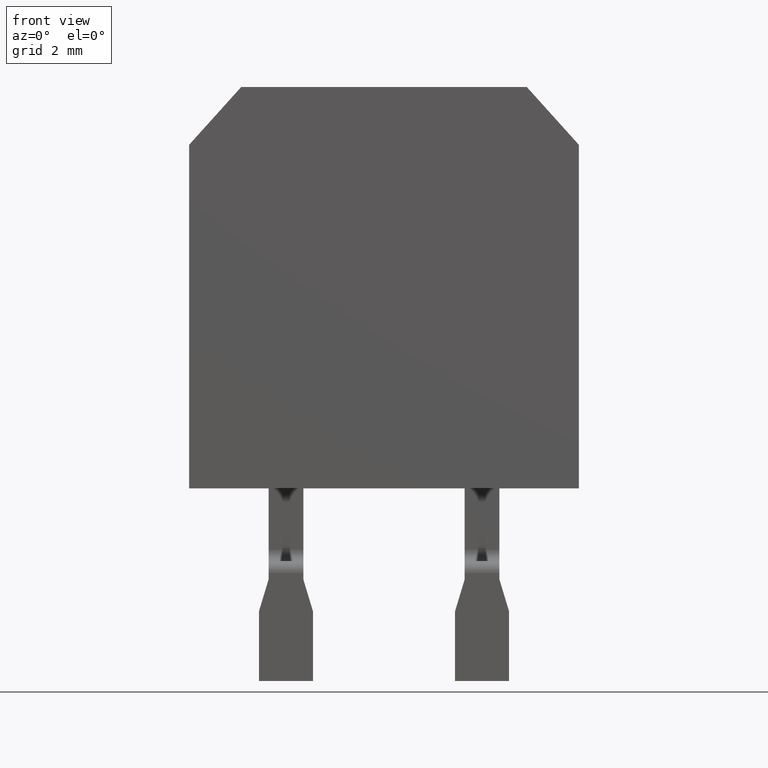
[diagram: clean part render]
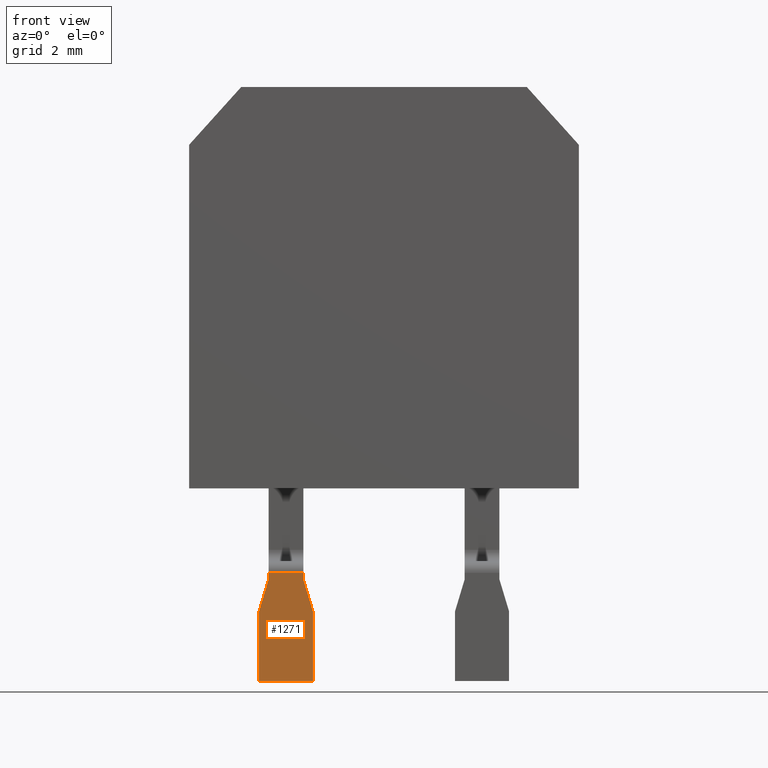
[diagram: same view with one face highlighted and labeled with its STEP entity id]
A machine part, front view. The second image highlights one B-rep face of the part: STEP entity #1271.
In plain terms, the highlighted planar face has unit normal (0, -1, 0).
Its self-contained STEP definition (entity closure, byte-faithful):
#403=DIRECTION('',(0.E0,0.E0,-1.E0));
#404=VECTOR('',#403,1.805227823591E0);
#405=CARTESIAN_POINT('',(-3.24E0,0.E0,-7.584772176409E0));
#406=LINE('',#405,#404);
#415=DIRECTION('',(0.E0,0.E0,-1.E0));
#416=VECTOR('',#415,1.67E-1);
#417=CARTESIAN_POINT('',(-2.99E0,0.E0,-6.59E0));
#418=LINE('',#417,#416);
#419=DIRECTION('',(-1.E0,0.E0,0.E0));
#420=VECTOR('',#419,9.E-1);
#421=CARTESIAN_POINT('',(-2.09E0,0.E0,-6.59E0));
#422=LINE('',#421,#420);
#423=DIRECTION('',(0.E0,0.E0,-1.E0));
#424=VECTOR('',#423,1.67E-1);
#425=CARTESIAN_POINT('',(-2.09E0,0.E0,-6.59E0));
#426=LINE('',#425,#424);
#427=DIRECTION('',(-2.891174804093E-1,0.E0,9.572936239847E-1));
#428=VECTOR('',#427,8.647003966903E-1);
#429=CARTESIAN_POINT('',(-1.84E0,0.E0,-7.584772176409E0));
#430=LINE('',#429,#428);
#431=DIRECTION('',(-2.891174804093E-1,0.E0,-9.572936239847E-1));
#432=VECTOR('',#431,8.647003966903E-1);
#433=CARTESIAN_POINT('',(-2.99E0,0.E0,-6.757E0));
#434=LINE('',#433,#432);
#473=DIRECTION('',(0.E0,0.E0,-1.E0));
#474=VECTOR('',#473,1.805227823591E0);
#475=CARTESIAN_POINT('',(-1.84E0,0.E0,-7.584772176409E0));
#476=LINE('',#475,#474);
#493=DIRECTION('',(1.E0,0.E0,0.E0));
#494=VECTOR('',#493,1.4E0);
#495=CARTESIAN_POINT('',(-3.24E0,0.E0,-9.39E0));
#496=LINE('',#495,#494);
#517=CARTESIAN_POINT('',(-3.24E0,0.E0,-9.39E0));
#519=VERTEX_POINT('',#517);
#521=CARTESIAN_POINT('',(-1.84E0,0.E0,-9.39E0));
#523=VERTEX_POINT('',#521);
#581=CARTESIAN_POINT('',(-3.24E0,0.E0,-7.584772176409E0));
#583=VERTEX_POINT('',#581);
#585=CARTESIAN_POINT('',(-1.84E0,0.E0,-7.584772176409E0));
#587=VERTEX_POINT('',#585);
#609=CARTESIAN_POINT('',(-2.99E0,0.E0,-6.59E0));
#610=CARTESIAN_POINT('',(-2.99E0,0.E0,-6.757E0));
#611=VERTEX_POINT('',#609);
#612=VERTEX_POINT('',#610);
#613=CARTESIAN_POINT('',(-2.09E0,0.E0,-6.757E0));
#614=VERTEX_POINT('',#613);
#615=CARTESIAN_POINT('',(-2.09E0,0.E0,-6.59E0));
#616=VERTEX_POINT('',#615);
#1252=CARTESIAN_POINT('',(-3.24E0,0.E0,-6.29E0));
#1253=DIRECTION('',(0.E0,-1.E0,0.E0));
#1254=DIRECTION('',(0.E0,0.E0,-1.E0));
#1255=AXIS2_PLACEMENT_3D('',#1252,#1253,#1254);
#1256=PLANE('',#1255);
#1257=ORIENTED_EDGE('',*,*,#1114,.F.);
#1259=ORIENTED_EDGE('',*,*,#1258,.F.);
#1260=ORIENTED_EDGE('',*,*,#1157,.T.);
#1262=ORIENTED_EDGE('',*,*,#1261,.F.);
#1264=ORIENTED_EDGE('',*,*,#1263,.T.);
#1266=ORIENTED_EDGE('',*,*,#1265,.F.);
#1267=ORIENTED_EDGE('',*,*,#1243,.F.);
#1268=ORIENTED_EDGE('',*,*,#1232,.F.);
#1269=EDGE_LOOP('',(#1257,#1259,#1260,#1262,#1264,#1266,#1267,#1268));
#1270=FACE_OUTER_BOUND('',#1269,.F.);
#1114=EDGE_CURVE('',#611,#612,#418,.T.);
#1157=EDGE_CURVE('',#616,#614,#426,.T.);
#1232=EDGE_CURVE('',#612,#583,#434,.T.);
#1243=EDGE_CURVE('',#583,#519,#406,.T.);
#1258=EDGE_CURVE('',#616,#611,#422,.T.);
#1261=EDGE_CURVE('',#587,#614,#430,.T.);
#1263=EDGE_CURVE('',#587,#523,#476,.T.);
#1265=EDGE_CURVE('',#519,#523,#496,.T.);
#1271=ADVANCED_FACE('',(#1270),#1256,.T.);